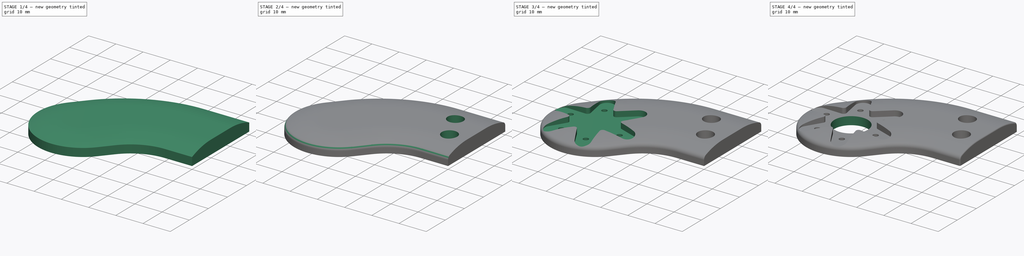
[diagram: build sequence overview — one tinted view per stage of 4, left to right]
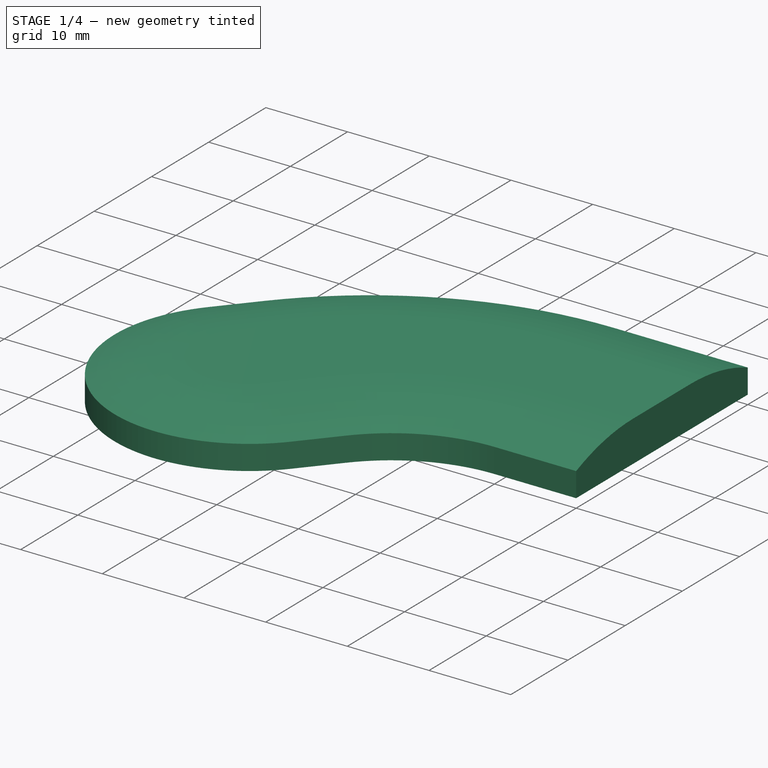
[diagram: stage 1 of 4 — iso view after this stage's code; geometry added in this stage tinted green]
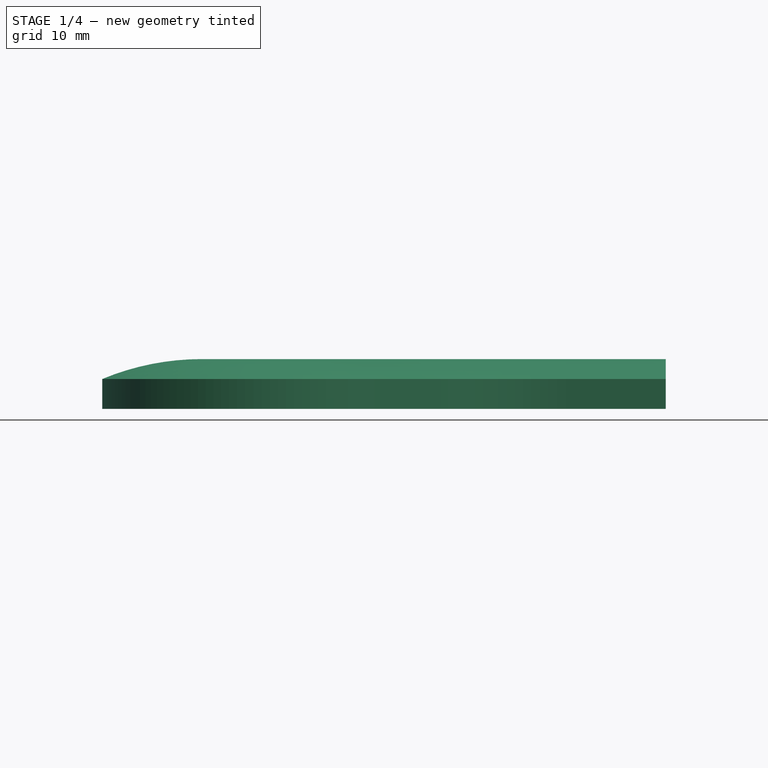
[diagram: stage 1 of 4 — front view after this stage's code; geometry added in this stage tinted green]
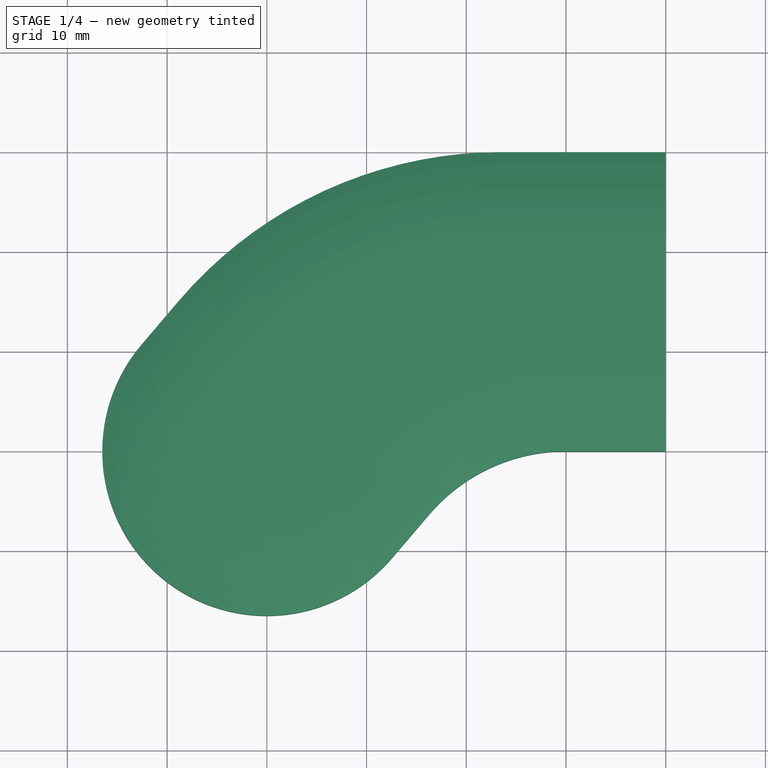
[diagram: stage 1 of 4 — top view after this stage's code; geometry added in this stage tinted green]
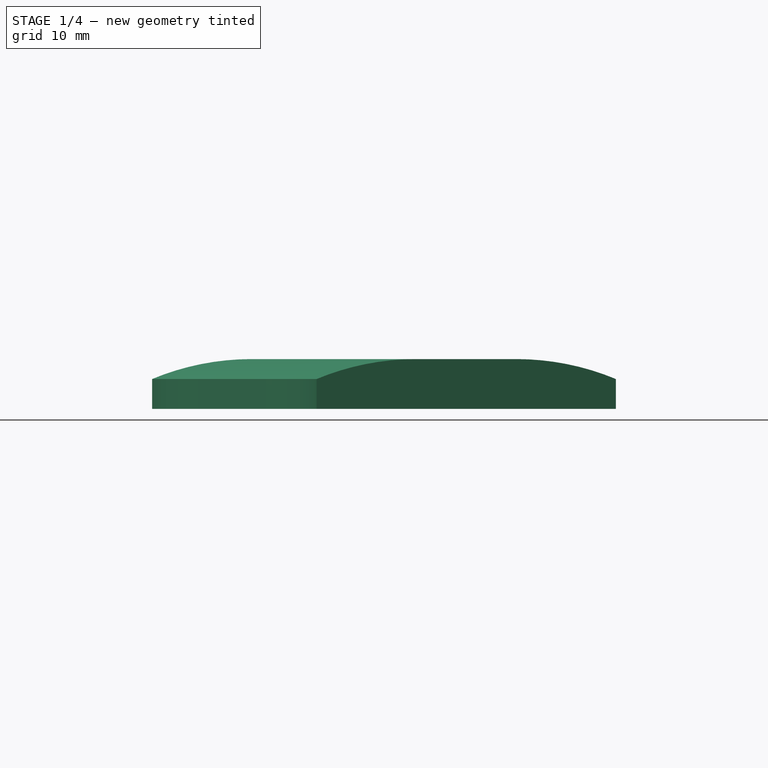
[diagram: stage 1 of 4 — right view after this stage's code; geometry added in this stage tinted green]
FCSTD DOCUMENT  (FreeCAD 0.18R4 (GitTag))
Label: Limb_Servohorn_Mount
License: CreativeCommons Attribution-NonCommercial
LicenseURL: http://creativecommons.org/licenses/by-nc/4.0/
objects: Sketcher::SketchObject×7, PartDesign::Pocket×5, PartDesign::Fillet×3, PartDesign::Pad×1, PartDesign::SubtractivePipe×1, PartDesign::Body×1
note: 25 computed .brp shape members not serialized (recipe doc carries the construction recipe); baked Part::Feature solids carry a one-line shape summary decoded from their .brp

FEATURE [Sketcher::SketchObject] Sketch
  MapMode = 5
  Support = -> [XY_Plane]
  sketch-geometry (9):
    g0: ArcOfCircle CenterX=0 CenterY=0 CenterZ=0 NormalX=0 NormalY=0 NormalZ=1 AngleXU=0 Radius=16.5 StartAngle=2.43561 EndAngle=5.5772
    g1: LineSegment StartX=-12.5561 StartY=10.7049 StartZ=0 EndX=-8.82561 EndY=15.0805 EndZ=0
    g2: ArcOfCircle CenterX=23.5 CenterY=-12.4792 CenterZ=0 NormalX=0 NormalY=0 NormalZ=1 AngleXU=0 Radius=42.4792 StartAngle=1.5708 EndAngle=2.43561
    g3: LineSegment StartX=23.5 StartY=30 StartZ=0 EndX=40 EndY=30 EndZ=0
    g4: LineSegment StartX=40 StartY=30 StartZ=0 EndX=40 EndY=0 EndZ=0
    g5: LineSegment StartX=40 StartY=0 StartZ=0 EndX=30 EndY=0 EndZ=0
    g6: ArcOfCircle CenterX=30 CenterY=-18.0208 CenterZ=0 NormalX=0 NormalY=0 NormalZ=1 AngleXU=0 Radius=18.0208 StartAngle=1.5708 EndAngle=2.43561
    g7: LineSegment StartX=16.2866 StartY=-6.32927 StartZ=0 EndX=12.5561 EndY=-10.7049 EndZ=0
    g8: LineSegment [constr] StartX=-8.82561 StartY=15.0805 StartZ=0 EndX=16.2866 EndY=-6.32927 EndZ=0
  constraints (21):
    c: Coincident(g0,g-1)
    c: Tangent(g0,g1) = 1.5708
    c: Tangent(g1,g2) = 1.5708
    c: Tangent(g2,g3) = 1.5708
    c: Perpendicular(g3,g4) = 4.71239
    c: Coincident(g4,g5)
    c: PointOnObject(g5,g-1)
    c: Horizontal(g5)
    c: Tangent(g5,g6) = -1.5708
    c: Tangent(g6,g7) = -1.5708
    c: Parallel(g7,g1)
    c: Radius(g0) = 16.5
    c: Horizontal(g3)
    c: DistanceY(g4,g4) = 30
    c: Tangent(g7,g0) = 1.5708
    c: DistanceX(g0,g4) = 40
    c: DistanceX(g0,g5) = 30
    c: Coincident(g8,g1)
    c: Coincident(g8,g6)
    c: Perpendicular(g1,g8)
    c: DistanceX(g3,g3) = 16.5
FEATURE [PartDesign::Pad] Pad  label="Baseplate"
  Length = 5
  Length2 = 100
  Profile = -> Sketch
  Type = 0
FEATURE [Sketcher::SketchObject] Sketch001
  MapMode = 5
  Placement = pos=(40,-9.6e-15,0) rot=(0.57735,0.57735,0.57735;2.0944rad)
  Support = -> [Pad]
  sketch-geometry (4):
    g0: ArcOfCircle CenterX=20 CenterY=-21 CenterZ=0 NormalX=0 NormalY=0 NormalZ=1 AngleXU=0 Radius=26 StartAngle=1.17601 EndAngle=1.5708
    g1: LineSegment StartX=20 StartY=5 StartZ=0 EndX=20 EndY=6 EndZ=0
    g2: LineSegment StartX=20 StartY=6 StartZ=0 EndX=30 EndY=6 EndZ=0
    g3: LineSegment StartX=30 StartY=6 StartZ=0 EndX=30 EndY=3 EndZ=0
  constraints (13):
    c: Coincident(g1,g0)
    c: Vertical(g1)
    c: Horizontal(g2)
    c: Coincident(g3,g2)
    c: Vertical(g3)
    c: Coincident(g0,g3)
    c: Coincident(g1,g2)
    c: DistanceY(g1,g1) = 1
    c: DistanceY(g3,g3) = 3
    c: DistanceX(g2,g2) = 10
    c: DistanceY(g-1,g0) = 5
    c: DistanceX(g-1,g0) = 30
    c: Perpendicular(g0,g1)
FEATURE [PartDesign::SubtractivePipe] SubtractivePipe  label="Smooth Surfaces"
  AuxilleryCurvelinear = true
  AuxillerySpineTangent = false
  BaseFeature = -> Pad
  Binormal = (0,0,0)
  Mode = 0
  Profile = -> Sketch001
  Spine = -> Pad [Edge19,Edge22,Edge24,Edge4,Edge7,Edge10,Edge13]
  SpineTangent = false
  Transformation = 0
  Transition = 0
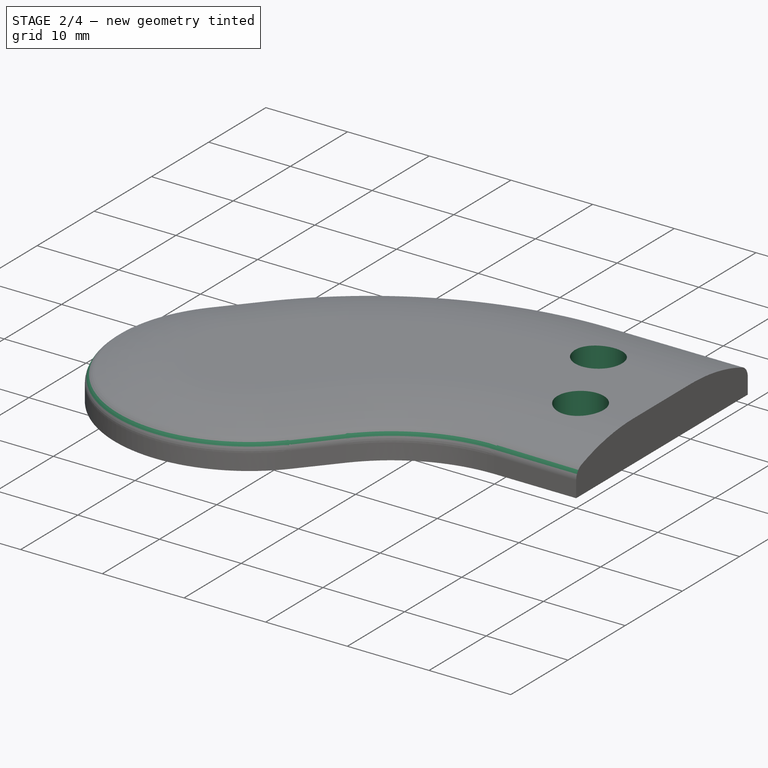
[diagram: stage 2 of 4 — iso view after this stage's code; geometry added in this stage tinted green]
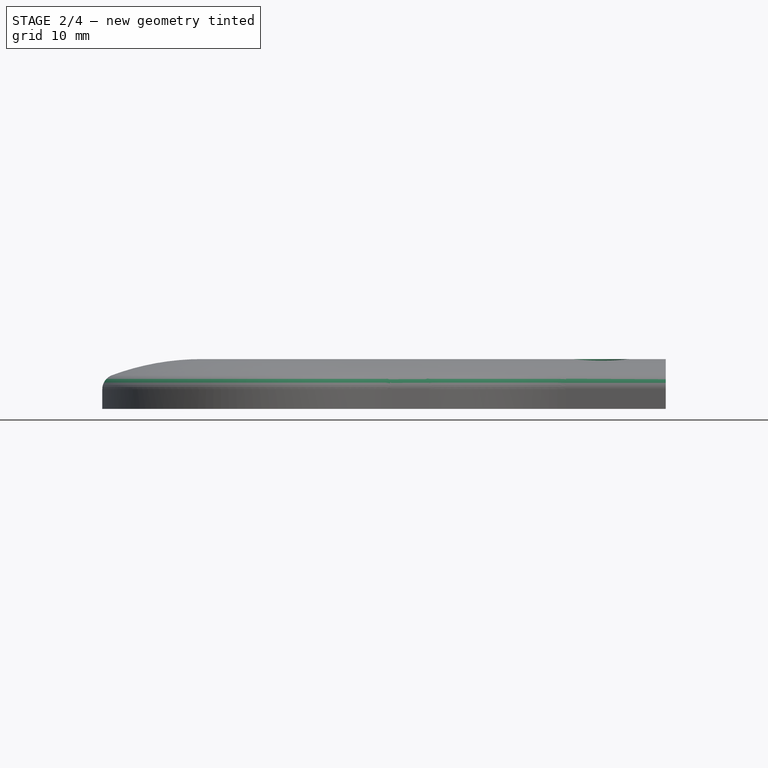
[diagram: stage 2 of 4 — front view after this stage's code; geometry added in this stage tinted green]
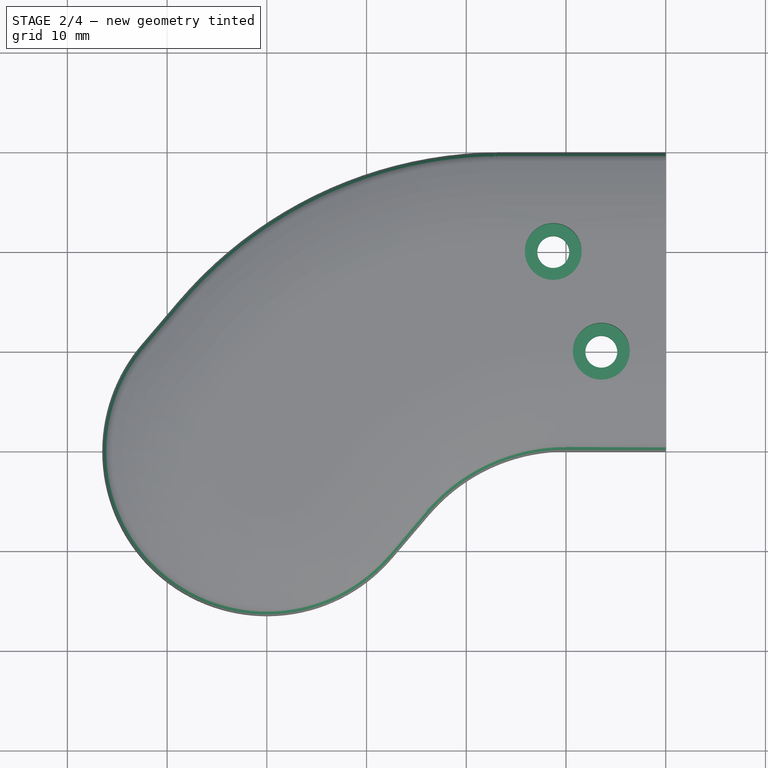
[diagram: stage 2 of 4 — top view after this stage's code; geometry added in this stage tinted green]
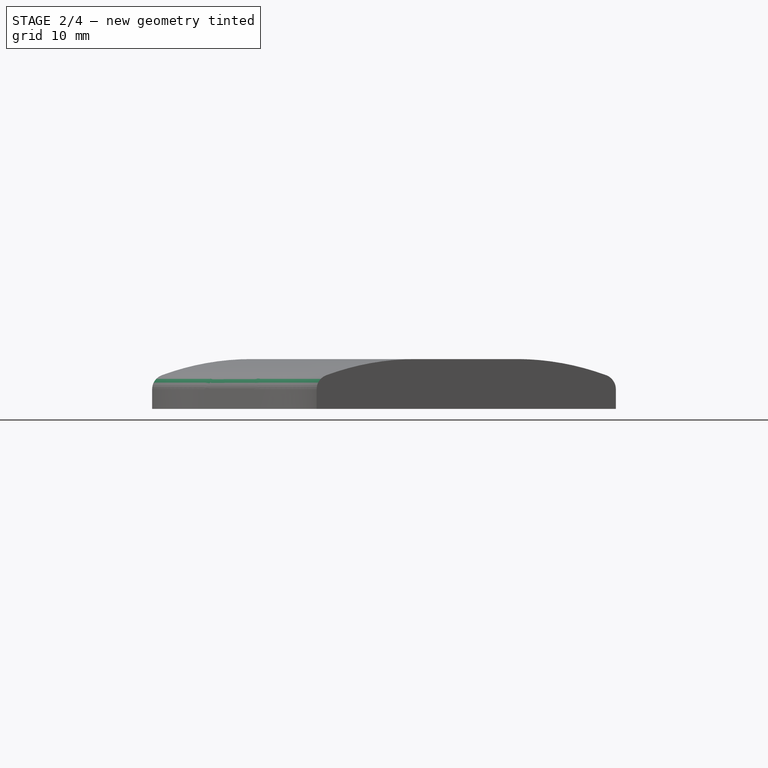
[diagram: stage 2 of 4 — right view after this stage's code; geometry added in this stage tinted green]
FEATURE [PartDesign::Fillet] Fillet  label="Smooth Edges"
  Base = -> SubtractivePipe [Edge21]
  BaseFeature = -> SubtractivePipe
  Radius = 1.5
FEATURE [Sketcher::SketchObject] Sketch133
  MapMode = 5
  Placement = pos=(0,0,5) rot=(0,0,1;0rad)
  Support = -> [SubtractivePipe]
  sketch-geometry (3):
    g0: Circle [constr] CenterX=0 CenterY=0 CenterZ=0 NormalX=0 NormalY=0 NormalZ=1 AngleXU=0 Radius=35
    g1: Circle CenterX=28.7228 CenterY=20 CenterZ=0 NormalX=0 NormalY=0 NormalZ=1 AngleXU=0 Radius=2.85
    g2: Circle CenterX=33.541 CenterY=10 CenterZ=0 NormalX=0 NormalY=0 NormalZ=1 AngleXU=0 Radius=2.85
  constraints (8):
    c: Coincident(g0,g-1)
    c: PointOnObject(g1,g0)
    c: PointOnObject(g2,g0)
    c: Radius(g0) = 35
    c: Equal(g2,g1)
    c: Radius(g1) = 2.85
    c: DistanceY(g2,g1) = 10
    c: DistanceY(g-1,g2) = 10
FEATURE [PartDesign::Pocket] Pocket  label="Screwheads Montage"
  BaseFeature = -> Fillet
  Length = 3
  Length2 = 100
  Profile = -> Sketch133
  Type = 0
FEATURE [Sketcher::SketchObject] Sketch134
  MapMode = 5
  Placement = pos=(0,0,2) rot=(0,0,1;0rad)
  Support = -> [Pocket]
  sketch-geometry (3):
    g0: Circle [constr] CenterX=0 CenterY=0 CenterZ=0 NormalX=0 NormalY=0 NormalZ=1 AngleXU=0 Radius=35
    g1: Circle CenterX=28.7228 CenterY=20 CenterZ=0 NormalX=0 NormalY=0 NormalZ=1 AngleXU=0 Radius=1.6
    g2: Circle CenterX=33.541 CenterY=10 CenterZ=0 NormalX=0 NormalY=0 NormalZ=1 AngleXU=0 Radius=1.6
  constraints (8):
    c: Coincident(g0,g-1)
    c: Radius(g0) = 35
    c: PointOnObject(g1,g0)
    c: PointOnObject(g2,g0)
    c: Equal(g2,g1)
    c: Radius(g2) = 1.6
    c: DistanceY(g2,g1) = 10
    c: DistanceY(g-1,g2) = 10
FEATURE [PartDesign::Pocket] Pocket001  label="Screwholes Montage"
  BaseFeature = -> Pocket
  Length = 3
  Length2 = 100
  Profile = -> Sketch134
  Type = 0
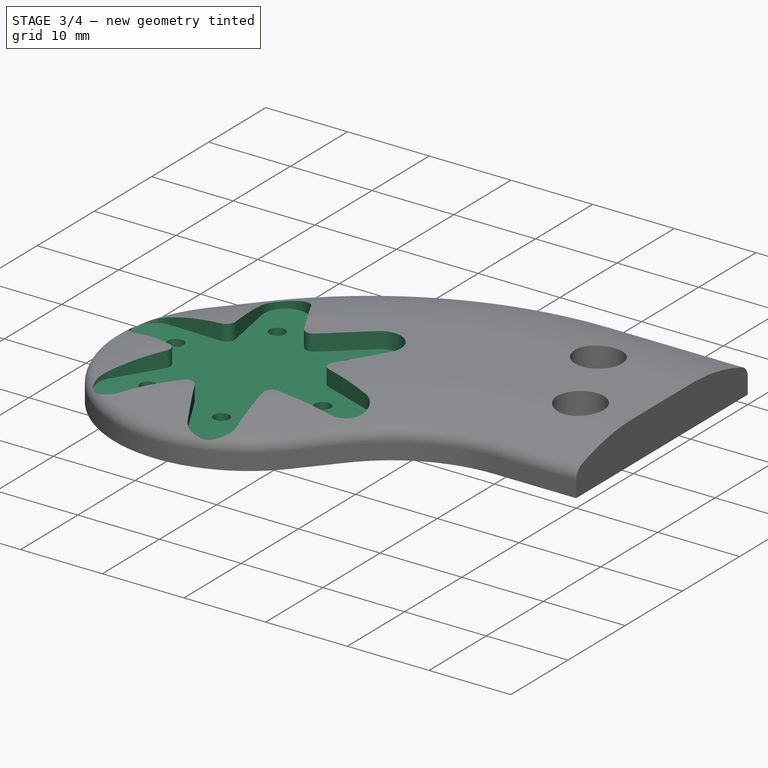
[diagram: stage 3 of 4 — iso view after this stage's code; geometry added in this stage tinted green]
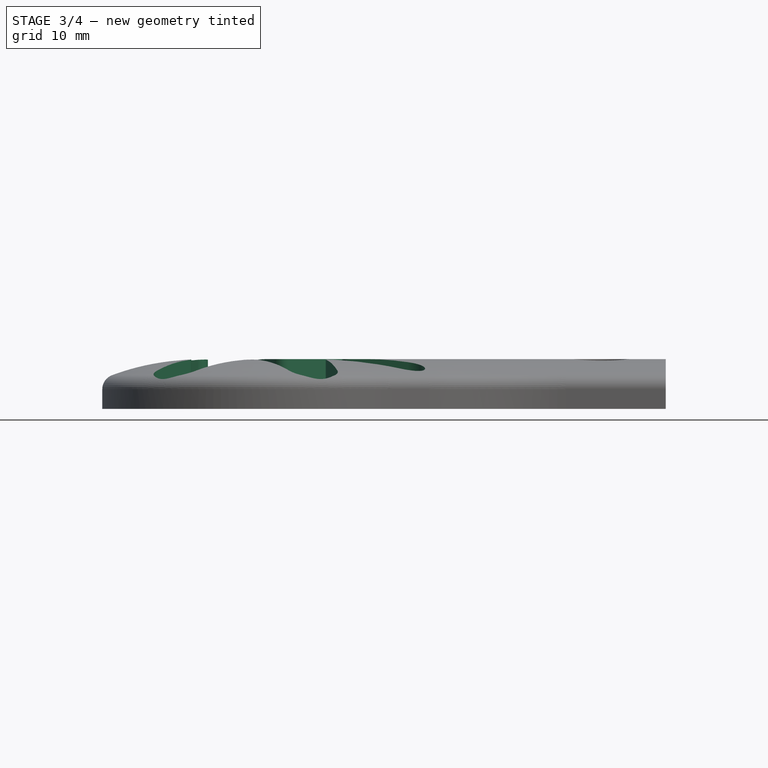
[diagram: stage 3 of 4 — front view after this stage's code; geometry added in this stage tinted green]
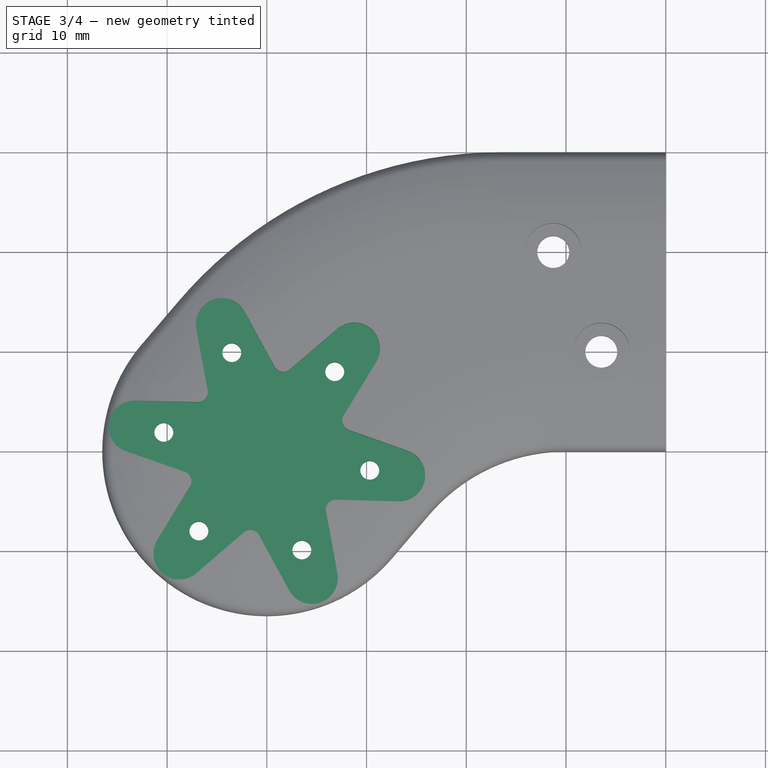
[diagram: stage 3 of 4 — top view after this stage's code; geometry added in this stage tinted green]
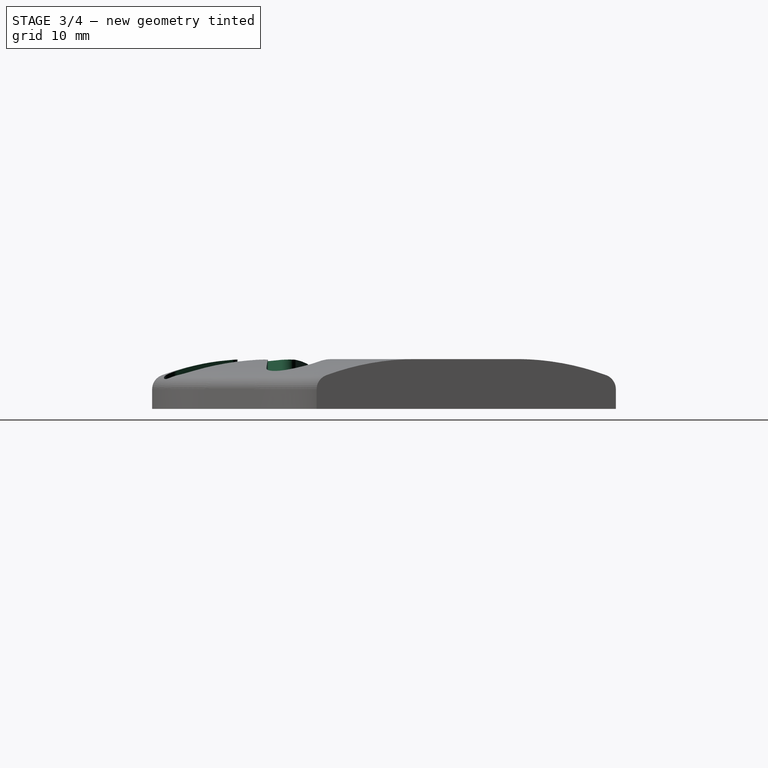
[diagram: stage 3 of 4 — right view after this stage's code; geometry added in this stage tinted green]
FEATURE [Sketcher::SketchObject] Sketch135
  MapMode = 5
  Placement = pos=(0,0,5) rot=(0,0,1;0rad)
  Support = -> [Fillet]
  sketch-geometry (33):
    g0: LineSegment [constr] StartX=8.75859 StartY=10.2731 StartZ=0 EndX=-4.5175 EndY=12.7217 EndZ=0
    g1: LineSegment [constr] StartX=-4.5175 StartY=12.7217 StartZ=0 EndX=-13.2761 EndY=2.44859 EndZ=0
    g2: LineSegment [constr] StartX=-13.2761 StartY=2.44859 StartZ=0 EndX=-8.75859 EndY=-10.2731 EndZ=0
    g3: LineSegment [constr] StartX=-8.75859 StartY=-10.2731 StartZ=0 EndX=4.5175 EndY=-12.7217 EndZ=0
    g4: LineSegment [constr] StartX=4.5175 StartY=-12.7217 StartZ=0 EndX=13.2761 EndY=-2.44859 EndZ=0
    g5: LineSegment [constr] StartX=13.2761 StartY=-2.44859 StartZ=0 EndX=8.75859 EndY=10.2731 EndZ=0
    g6: Circle [constr] CenterX=0 CenterY=0 CenterZ=0 NormalX=0 NormalY=0 NormalZ=1 AngleXU=0 Radius=13.5
    g7: LineSegment [constr] StartX=7.06762 StartY=2.50972 StartZ=0 EndX=1.36033 EndY=7.3756 EndZ=0
    g8: LineSegment [constr] StartX=1.36033 StartY=7.3756 StartZ=0 EndX=-5.70729 EndY=4.86588 EndZ=0
    g9: LineSegment [constr] StartX=-5.70729 StartY=4.86588 StartZ=0 EndX=-7.06762 EndY=-2.50972 EndZ=0
    g10: LineSegment [constr] StartX=-7.06762 StartY=-2.50972 StartZ=0 EndX=-1.36033 EndY=-7.3756 EndZ=0
    g11: LineSegment [constr] StartX=-1.36033 StartY=-7.3756 StartZ=0 EndX=5.70729 EndY=-4.86588 EndZ=0
    g12: LineSegment [constr] StartX=5.70729 StartY=-4.86588 StartZ=0 EndX=7.06762 EndY=2.50972 EndZ=0
    g13: Circle [constr] CenterX=0 CenterY=0 CenterZ=0 NormalX=0 NormalY=0 NormalZ=1 AngleXU=0 Radius=7.5
    g14: ArcOfCircle CenterX=13.2761 CenterY=-2.44859 CenterZ=0 NormalX=0 NormalY=0 NormalZ=1 AngleXU=0 Radius=2.6 StartAngle=4.68815 EndAngle=7.51344
    g15: ArcOfCircle CenterX=4.5175 CenterY=-12.7217 CenterZ=0 NormalX=0 NormalY=0 NormalZ=1 AngleXU=0 Radius=2.6 StartAngle=3.64095 EndAngle=6.46625
    g16: ArcOfCircle CenterX=-8.75859 CenterY=-10.2731 CenterZ=0 NormalX=0 NormalY=0 NormalZ=1 AngleXU=0 Radius=2.6 StartAngle=2.59376 EndAngle=5.41905
    g17: ArcOfCircle CenterX=-13.2761 CenterY=2.44859 CenterZ=0 NormalX=0 NormalY=0 NormalZ=1 AngleXU=0 Radius=2.6 StartAngle=1.54656 EndAngle=4.37185
    g18: ArcOfCircle CenterX=-4.5175 CenterY=12.7217 CenterZ=0 NormalX=0 NormalY=0 NormalZ=1 AngleXU=0 Radius=2.6 StartAngle=0.499362 EndAngle=3.32465
    g19: ArcOfCircle CenterX=8.75859 CenterY=10.2731 CenterZ=0 NormalX=0 NormalY=0 NormalZ=1 AngleXU=0 Radius=2.6 StartAngle=5.73535 EndAngle=8.56064
    g20: LineSegment StartX=10.9781 StartY=8.91894 StartZ=0 EndX=7.06762 EndY=2.50972 EndZ=0
    g21: LineSegment StartX=7.06762 StartY=2.50972 StartZ=0 EndX=14.1445 EndY=0.00210095 EndZ=0
    g22: LineSegment StartX=13.2131 StartY=-5.04783 StartZ=0 EndX=5.70729 EndY=-4.86588 EndZ=0
    g23: LineSegment StartX=5.70729 StartY=-4.86588 StartZ=0 EndX=7.07405 EndY=-12.2484 EndZ=0
    g24: LineSegment StartX=2.23499 StartY=-13.9668 StartZ=0 EndX=-1.36033 EndY=-7.3756 EndZ=0
    g25: LineSegment StartX=-1.36033 StartY=-7.3756 StartZ=0 EndX=-7.07041 EndY=-12.2505 EndZ=0
    g26: LineSegment StartX=-10.9781 StartY=-8.91894 StartZ=0 EndX=-7.06762 EndY=-2.50972 EndZ=0
    g27: LineSegment StartX=-7.06762 StartY=-2.50972 StartZ=0 EndX=-14.1445 EndY=-0.00210095 EndZ=0
    g28: LineSegment StartX=-13.2131 StartY=5.04783 StartZ=0 EndX=-5.70729 EndY=4.86588 EndZ=0
    g29: LineSegment StartX=-5.70729 StartY=4.86588 StartZ=0 EndX=-7.07405 EndY=12.2484 EndZ=0
    g30: LineSegment StartX=-2.23499 StartY=13.9668 StartZ=0 EndX=1.36033 EndY=7.3756 EndZ=0
    g31: LineSegment StartX=1.36033 StartY=7.3756 StartZ=0 EndX=7.07041 EndY=12.2505 EndZ=0
    g32: LineSegment [constr] StartX=8.75859 StartY=10.2731 StartZ=0 EndX=-8.75859 EndY=-10.2731 EndZ=0
  constraints (70):
    c: Coincident(g0,g1)
    c: Coincident(g1,g2)
    c: Coincident(g2,g3)
    c: Coincident(g3,g4)
    c: Coincident(g4,g5)
    c: Coincident(g5,g0)
    c: Equal(g0, g1-g5) x5
    c: PointOnObject(g0,g6)
    c: PointOnObject(g1,g6)
    c: PointOnObject(g2,g6)
    c: PointOnObject(g3,g6)
    c: PointOnObject(g4,g6)
    c: PointOnObject(g5,g6)
    c: Coincident(g6,g-1)
    c: Radius(g6) = 13.5
    c: Coincident(g7,g8)
    c: Coincident(g8,g9)
    c: Coincident(g9,g10)
    c: Coincident(g10,g11)
    c: Coincident(g11,g12)
    c: Coincident(g12,g7)
    c: Equal(g7, g8-g12) x5
    c: PointOnObject(g7,g13)
    c: PointOnObject(g8,g13)
    c: PointOnObject(g9,g13)
    c: PointOnObject(g10,g13)
    c: PointOnObject(g11,g13)
    c: PointOnObject(g12,g13)
    c: Coincident(g13,g-1)
    c: Radius(g13) = 7.5
    c: Coincident(g14,g4)
    c: Coincident(g15,g3)
    c: Coincident(g16,g2)
    c: Coincident(g17,g1)
    c: Coincident(g18,g0)
    c: Coincident(g19,g0)
    c: Coincident(g20,g7)
    c: Coincident(g21,g20)
    c: Coincident(g22,g11)
    c: Coincident(g23,g22)
    c: Coincident(g24,g10)
    c: Coincident(g25,g24)
    c: Coincident(g26,g9)
    c: Coincident(g28,g8)
    c: Coincident(g29,g28)
    c: Coincident(g30,g7)
    c: Coincident(g31,g30)
    c: Tangent(g22,g14) = 1.5708
    c: Tangent(g23,g15) = 1.5708
    c: Tangent(g24,g15) = 1.5708
    c: Tangent(g26,g16) = 1.5708
    c: Tangent(g21,g14) = 1.5708
    c: Tangent(g16,g25) = 1.5708
    c: Tangent(g29,g18) = 1.5708
    c: Tangent(g30,g18) = 1.5708
    c: Tangent(g31,g19) = 1.5708
    c: Tangent(g20,g19) = 1.5708
    c: Tangent(g27,g17) = 1.5708
    c: Tangent(g17,g28) = 1.5708
    c: Coincident(g27,g26)
    c: Equal(g14,g15)
    c: Equal(g15,g16)
    c: Equal(g16,g17)
    c: Equal(g17,g18)
    c: Equal(g18,g19)
    c: Radius(g14) = 2.6
    c: Coincident(g32,g19)
    c: Coincident(g32,g16)
    c: Perpendicular(g32,g7)
    c: Angle(g32,g-2) = 0.705986
FEATURE [PartDesign::Pocket] Pocket002  label="Servohorn"
  BaseFeature = -> Pocket001
  Length = 2
  Length2 = 100
  Profile = -> Sketch135
  Type = 0
FEATURE [PartDesign::Fillet] Fillet001  label="Smooth Servhohorn Edges"
  Base = -> Pocket002 [Edge118,Edge108,Edge123,Edge112,Edge111,Edge109]
  BaseFeature = -> Pocket002
  Radius = 1
FEATURE [Sketcher::SketchObject] Sketch136
  MapMode = 5
  Placement = pos=(0,0,3) rot=(0,0,1;0rad)
  Support = -> [Fillet001]
  sketch-geometry (14):
    g0: LineSegment [constr] StartX=6.81223 StartY=7.99021 StartZ=0 EndX=-3.51361 EndY=9.89467 EndZ=0
    g1: LineSegment [constr] StartX=-3.51361 StartY=9.89467 StartZ=0 EndX=-10.3258 EndY=1.90446 EndZ=0
    g2: LineSegment [constr] StartX=-10.3258 StartY=1.90446 StartZ=0 EndX=-6.81223 EndY=-7.99021 EndZ=0
    g3: LineSegment [constr] StartX=-6.81223 StartY=-7.99021 StartZ=0 EndX=3.51361 EndY=-9.89467 EndZ=0
    g4: LineSegment [constr] StartX=3.51361 StartY=-9.89467 StartZ=0 EndX=10.3258 EndY=-1.90446 EndZ=0
    g5: LineSegment [constr] StartX=10.3258 StartY=-1.90446 StartZ=0 EndX=6.81223 EndY=7.99021 EndZ=0
    g6: Circle [constr] CenterX=0 CenterY=0 CenterZ=0 NormalX=0 NormalY=0 NormalZ=1 AngleXU=0 Radius=10.5
    g7: LineSegment [constr] StartX=6.81223 StartY=7.99021 StartZ=0 EndX=-6.81223 EndY=-7.99021 EndZ=0
    g8: Circle CenterX=6.81223 CenterY=7.99021 CenterZ=0 NormalX=0 NormalY=0 NormalZ=1 AngleXU=0 Radius=0.95
    g9: Circle CenterX=10.3258 CenterY=-1.90446 CenterZ=0 NormalX=0 NormalY=0 NormalZ=1 AngleXU=0 Radius=0.95
    g10: Circle CenterX=3.51361 CenterY=-9.89467 CenterZ=0 NormalX=0 NormalY=0 NormalZ=1 AngleXU=0 Radius=0.95
    g11: Circle CenterX=-6.81223 CenterY=-7.99021 CenterZ=0 NormalX=0 NormalY=0 NormalZ=1 AngleXU=0 Radius=0.95
    g12: Circle CenterX=-10.3258 CenterY=1.90446 CenterZ=0 NormalX=0 NormalY=0 NormalZ=1 AngleXU=0 Radius=0.95
    g13: Circle CenterX=-3.51361 CenterY=9.89467 CenterZ=0 NormalX=0 NormalY=0 NormalZ=1 AngleXU=0 Radius=0.95
  constraints (30):
    c: Coincident(g0,g1)
    c: Coincident(g1,g2)
    c: Coincident(g2,g3)
    c: Coincident(g3,g4)
    c: Coincident(g4,g5)
    c: Coincident(g5,g0)
    c: Equal(g0, g1-g5) x5
    c: PointOnObject(g0,g6)
    c: PointOnObject(g1,g6)
    c: PointOnObject(g2,g6)
    c: PointOnObject(g3,g6)
    c: PointOnObject(g4,g6)
    c: PointOnObject(g5,g6)
    c: Coincident(g6,g-1)
    c: Coincident(g7,g0)
    c: Coincident(g7,g2)
    c: Angle(g7,g-2) = 0.705986
    c: Radius(g6) = 10.5
    c: Coincident(g8,g0)
    c: Coincident(g9,g4)
    c: Coincident(g10,g3)
    c: Coincident(g11,g2)
    c: Coincident(g12,g1)
    c: Coincident(g13,g0)
    c: Equal(g13,g12)
    c: Equal(g12,g11)
    c: Equal(g11,g10)
    c: Equal(g10,g9)
    c: Equal(g9,g8)
    c: Radius(g8) = 0.95
FEATURE [PartDesign::Pocket] Pocket003  label="Servohorn Mounting Holes"
  BaseFeature = -> Fillet001
  Length = 3
  Length2 = 100
  Profile = -> Sketch136
  Type = 0
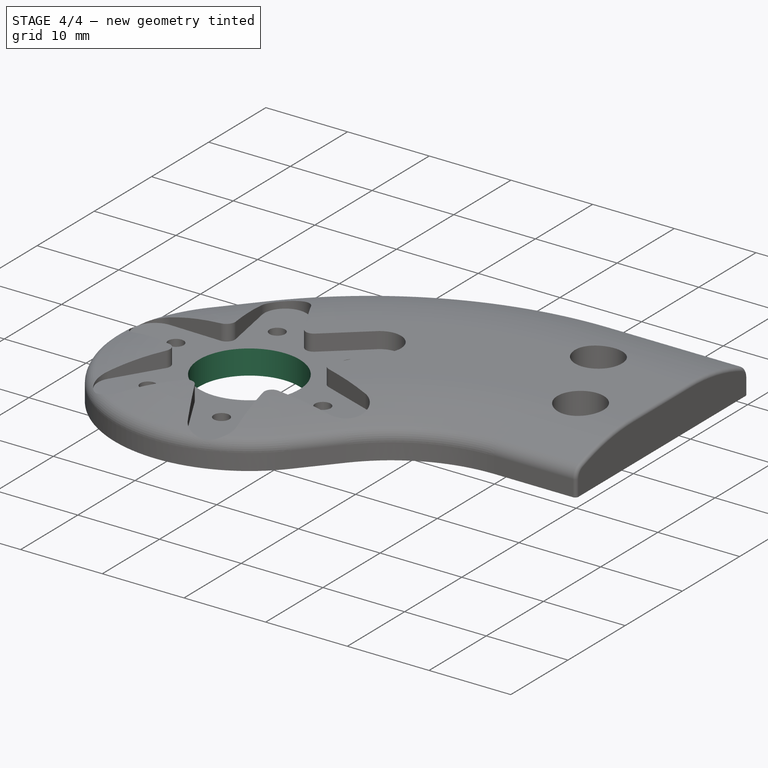
[diagram: stage 4 of 4 — iso view after this stage's code; geometry added in this stage tinted green]
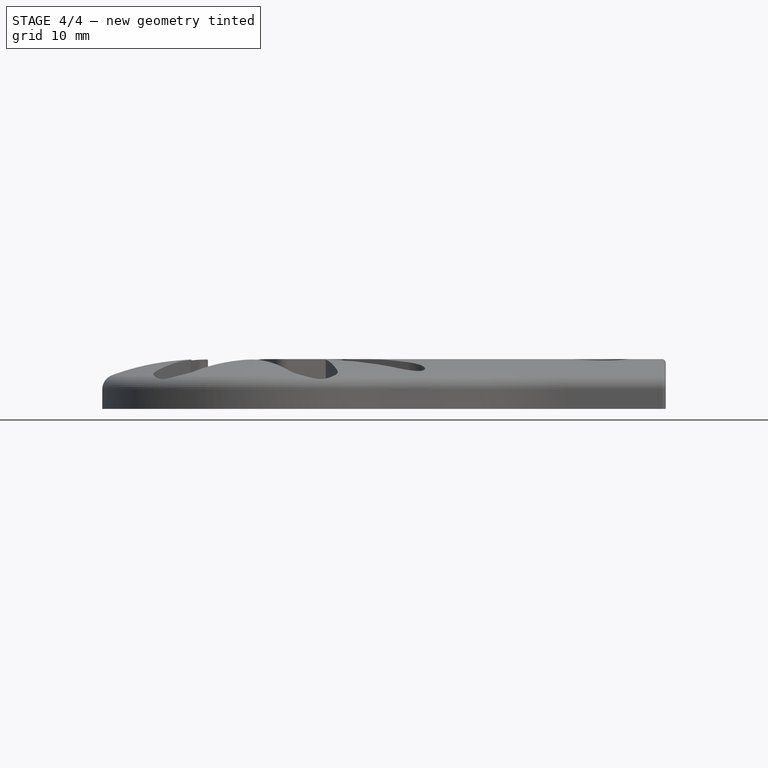
[diagram: stage 4 of 4 — front view after this stage's code; geometry added in this stage tinted green]
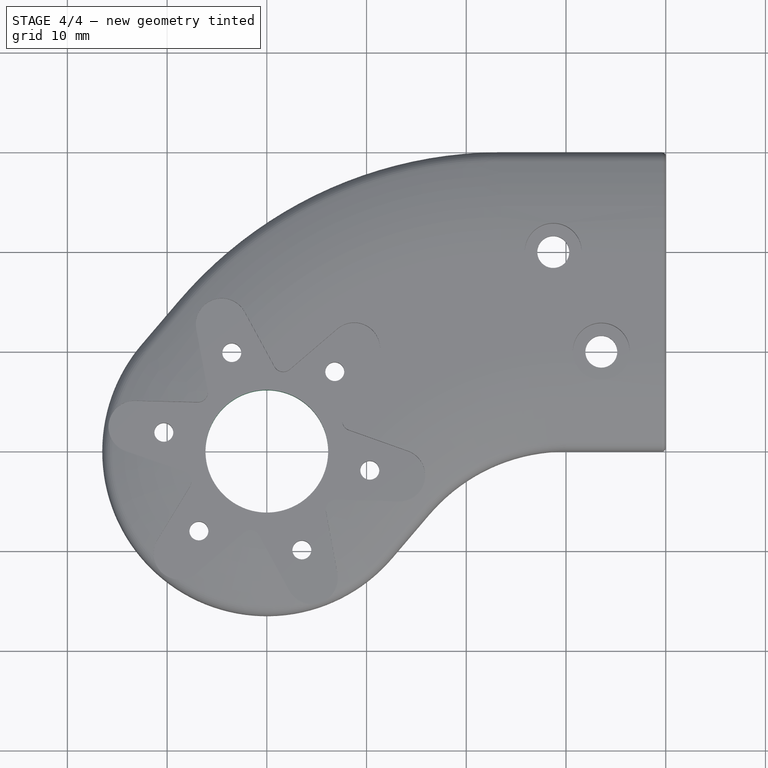
[diagram: stage 4 of 4 — top view after this stage's code; geometry added in this stage tinted green]
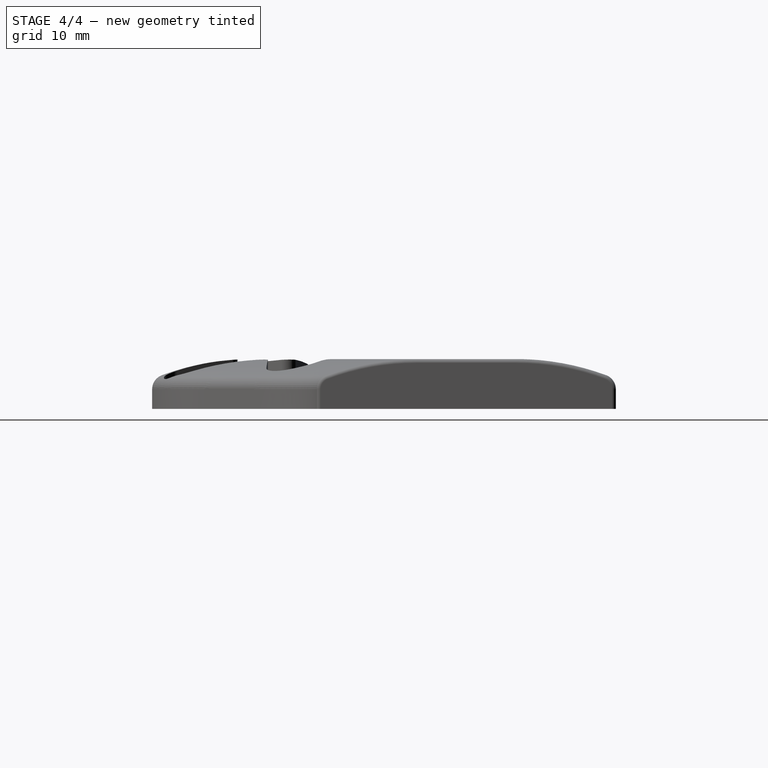
[diagram: stage 4 of 4 — right view after this stage's code; geometry added in this stage tinted green]
FEATURE [Sketcher::SketchObject] Sketch137
  MapMode = 5
  Placement = pos=(0,0,3) rot=(0,0,1;0rad)
  Support = -> [Pocket003]
  sketch-geometry (1):
    g0: Circle CenterX=0 CenterY=0 CenterZ=0 NormalX=0 NormalY=0 NormalZ=1 AngleXU=0 Radius=6.15
  constraints (2):
    c: Coincident(g0,g-1)
    c: Radius(g0) = 6.15
FEATURE [PartDesign::Pocket] Pocket004  label="Servohorn Axis"
  BaseFeature = -> Pocket003
  Length = 3
  Length2 = 100
  Profile = -> Sketch137
  Type = 0
FEATURE [PartDesign::Fillet] Fillet002  label="Smooth End Egde"
  Base = -> Pocket004 [Edge171]
  BaseFeature = -> Pocket004
  Radius = 0.4
FEATURE [PartDesign::Body] Body  label="Limb_Servohorn_Mount"
  Group = -> [Sketch,Pad,Sketch001,SubtractivePipe,Fillet,Sketch133,Pocket,Sketch134,Pocket001,Sketch135,Pocket002,Fillet001,Sketch136,Pocket003,Sketch137,Pocket004,Fillet002]
  Origin = -> Origin
  Tip = -> Fillet002
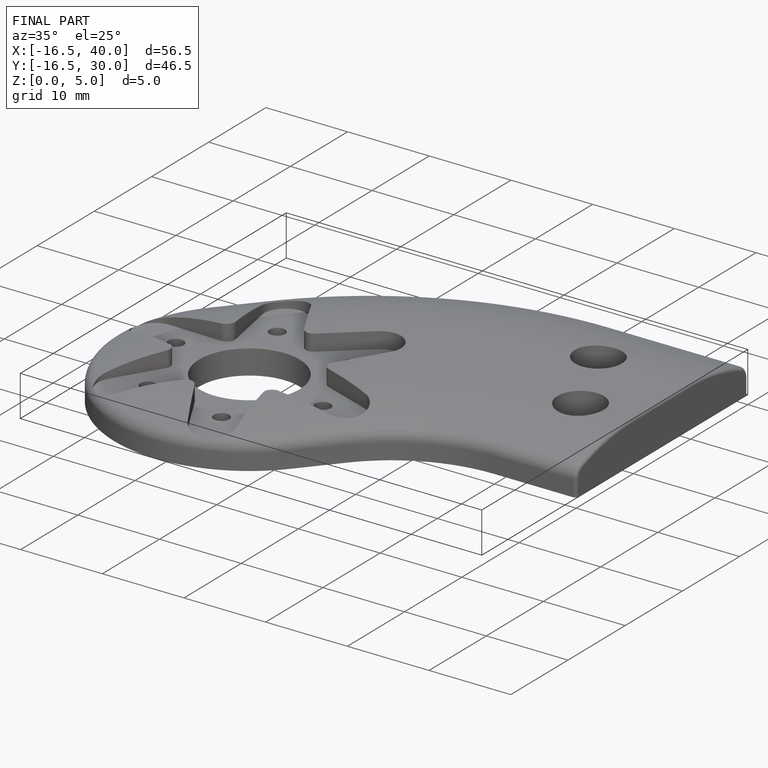
[diagram: finished part — iso view with bounding-box wireframe]
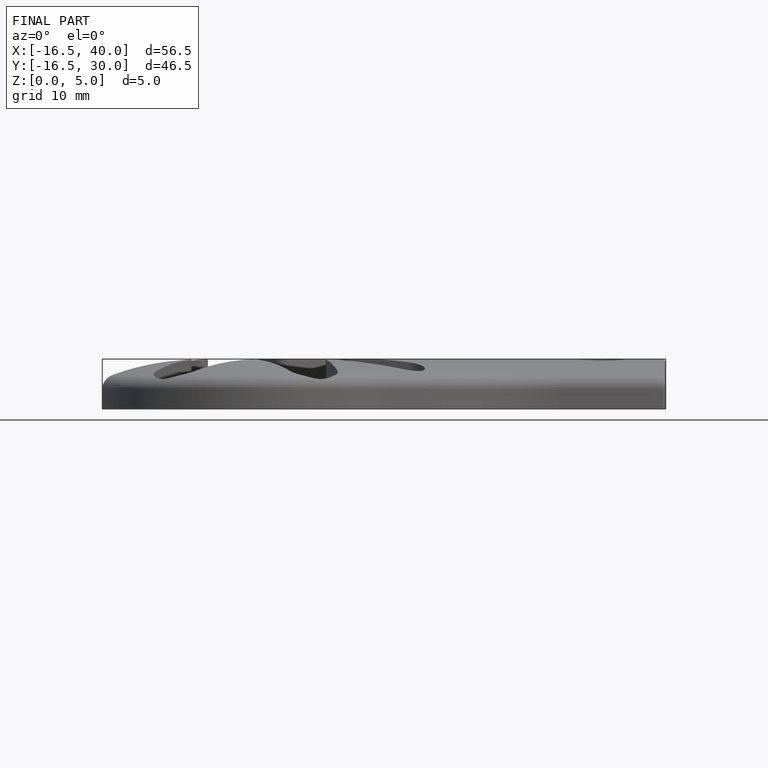
[diagram: finished part — front view with bounding-box wireframe]
